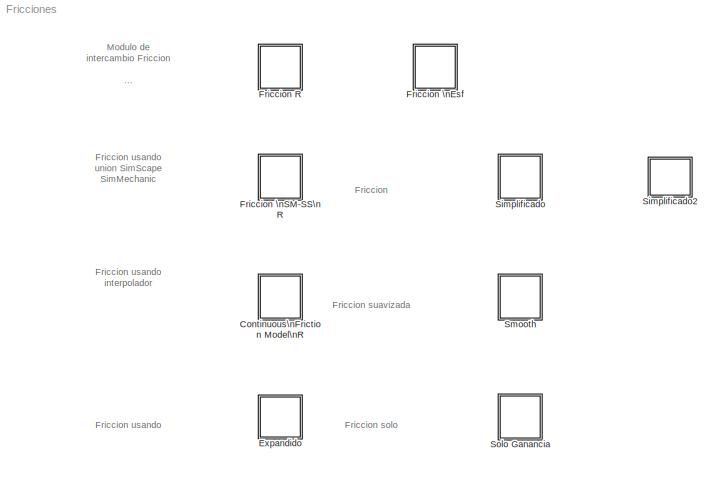
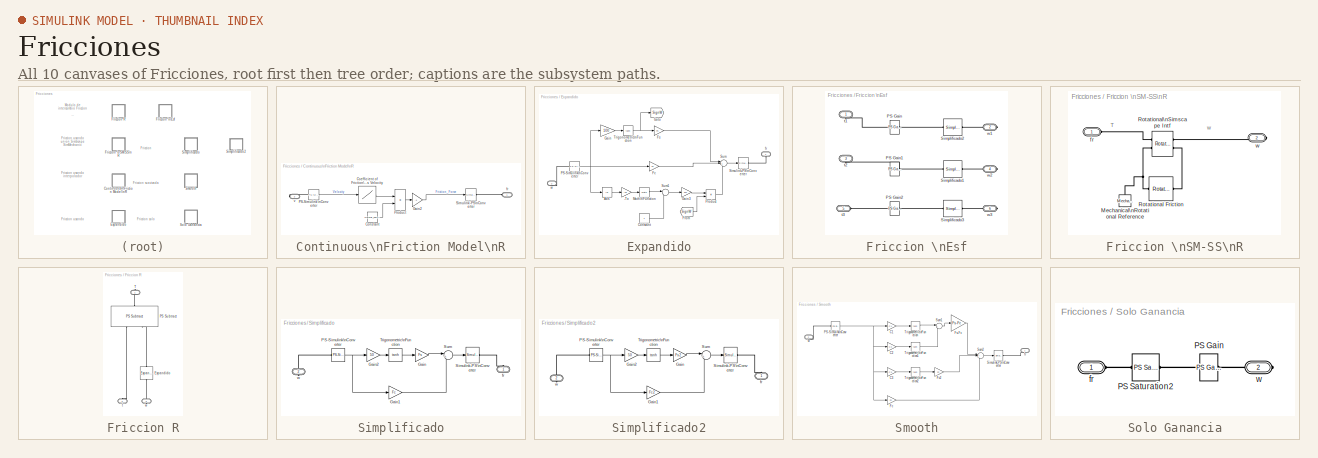
[diagram: thumbnail index - all 10 canvases of the model, root first then tree order]
MODEL Fricciones
KIND library
BLOCK [SubSystem] Continuous\nFriction Model\nR
  Ports = [0, 0, 0, 0, 0, 1, 1]
  RequestExecContextInheritance = off
  SID = 76
BLOCK [Lookup] Continuous\nFriction Model\nR/Coefficient of Friction\nvs Velocity
  InputValues = v_pts
  SID = 97
  SaturateOnIntegerOverflow = off
  Table = mu_pts
BLOCK [Constant] Continuous\nFriction Model\nR/Constant
  SID = 98
  Value = Normal_Force_Pist_Cyl
BLOCK [Gain] Continuous\nFriction Model\nR/Gain2
  Gain = -1
  Multiplication = Matrix(K*u)
  SID = 100
BLOCK [Reference] Continuous\nFriction Model\nR/PS-Simulink\nConverter  REF=nesl_utility/PS-Simulink\nConverter
  AffineConversion = off
  Frequencies = []
  LeftPortType = input
  PhysicalDomain = network_engine_domain
  Ports = [0, 1, 0, 0, 0, 1]
  PseudoPeriodic = off
  RightPortType = output
  SID = 102
  SourceBlock = nesl_utility/PS-Simulink\nConverter
  SourceType = PS-Simulink\nConverter
  SubClassName = ps_output
  Unit = 1
BLOCK [Product] Continuous\nFriction Model\nR/Product
  InputSameDT = off
  OutDataTypeStr = Inherit: Inherit via internal rule
  Ports = [2, 1]
  SID = 103
  SaturateOnIntegerOverflow = off
BLOCK [Reference] Continuous\nFriction Model\nR/Simulink-PS\nConverter  REF=nesl_utility/Simulink-PS\nConverter
  AffineConversion = off
  Frequencies = []
  InputFilterTimeConstant = 0.001
  InputFiltering = off
  LeftPortType = input
  NoiseDistribution = none
  NoiseParameters = []
  PhysicalDomain = network_engine_domain
  Ports = [1, 0, 0, 0, 0, 0, 1]
  PseudoPeriodic = off
  RightPortType = output
  SID = 104
  SimscapeFilterOrder = 1
  SourceBlock = nesl_utility/Simulink-PS\nConverter
  SourceType = Simulink-PS\nConverter
  SubClassName = ps_input
  UdotUserProvided = 1
  Unit = 1
BLOCK [PMIOPort] Continuous\nFriction Model\nR/fr
  Port = 1
  SID = 109
  Side = Left
BLOCK [PMIOPort] Continuous\nFriction Model\nR/v
  Port = 2
  SID = 110
  Side = Right
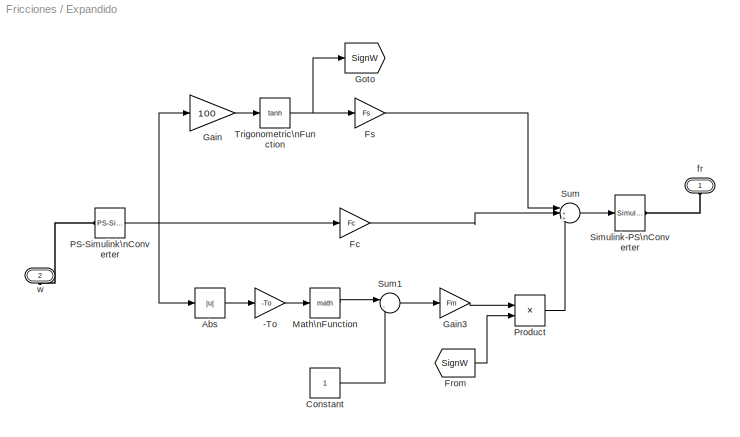
BLOCK [SubSystem] Expandido
  Ports = [0, 0, 0, 0, 0, 1, 1]
  RequestExecContextInheritance = off
  SID = 276
BLOCK [Gain] Expandido/-To
  Gain = -To
  OutDataTypeStr = Inherit: Inherit via internal rule
  ParamDataTypeStr = Inherit: Inherit via internal rule
  SID = 338
  SaturateOnIntegerOverflow = off
BLOCK [Abs] Expandido/Abs
  SID = 335
  SaturateOnIntegerOverflow = off
BLOCK [Constant] Expandido/Constant
  SID = 339
BLOCK [Gain] Expandido/Fc
  Gain = Fc
  OutDataTypeStr = Inherit: Inherit via internal rule
  ParamDataTypeStr = Inherit: Inherit via internal rule
  SID = 331
  SaturateOnIntegerOverflow = off
BLOCK [From] Expandido/From
  GotoTag = SignW
  SID = 390
BLOCK [Gain] Expandido/Fs
  Gain = Fs
  OutDataTypeStr = Inherit: Inherit via internal rule
  ParamDataTypeStr = Inherit: Inherit via internal rule
  SID = 332
  SaturateOnIntegerOverflow = off
BLOCK [Gain] Expandido/Gain
  Gain = 100
  OutDataTypeStr = Inherit: Inherit via internal rule
  ParamDataTypeStr = Inherit: Inherit via internal rule
  SID = 324
  SaturateOnIntegerOverflow = off
BLOCK [Gain] Expandido/Gain3
  Gain = Fm
  OutDataTypeStr = Inherit: Inherit via internal rule
  ParamDataTypeStr = Inherit: Inherit via internal rule
  SID = 337
  SaturateOnIntegerOverflow = off
BLOCK [Goto] Expandido/Goto
  GotoTag = SignW
  SID = 389
BLOCK [Math] Expandido/Math\nFunction
  Ports = [1, 1]
  SID = 336
BLOCK [Reference] Expandido/PS-Simulink\nConverter  REF=nesl_utility/PS-Simulink\nConverter
  AffineConversion = off
  Frequencies = []
  LeftPortType = input
  PhysicalDomain = network_engine_domain
  Ports = [0, 1, 0, 0, 0, 1]
  PseudoPeriodic = off
  RightPortType = output
  SID = 326
  SourceBlock = nesl_utility/PS-Simulink\nConverter
  SourceType = PS-Simulink\nConverter
  SubClassName = ps_output
  Unit = 1
BLOCK [Product] Expandido/Product
  InputSameDT = off
  OutDataTypeStr = Inherit: Inherit via internal rule
  Ports = [2, 1]
  RndMeth = Floor
  SID = 334
  SaturateOnIntegerOverflow = off
BLOCK [Reference] Expandido/Simulink-PS\nConverter  REF=nesl_utility/Simulink-PS\nConverter
  AffineConversion = off
  Frequencies = []
  InputFilterTimeConstant = 0.001
  InputFiltering = off
  LeftPortType = input
  NoiseDistribution = none
  NoiseParameters = []
  PhysicalDomain = network_engine_domain
  Ports = [1, 0, 0, 0, 0, 0, 1]
  PseudoPeriodic = off
  RightPortType = output
  SID = 342
  SimscapeFilterOrder = 1
  SourceBlock = nesl_utility/Simulink-PS\nConverter
  SourceType = Simulink-PS\nConverter
  SubClassName = ps_input
  UdotUserProvided = 1
  Unit = 1
BLOCK [Sum] Expandido/Sum
  IconShape = round
  InputSameDT = off
  Inputs = |++-
  OutDataTypeStr = Inherit: Inherit via internal rule
  Ports = [3, 1]
  SID = 333
  SaturateOnIntegerOverflow = off
BLOCK [Sum] Expandido/Sum1
  IconShape = round
  InputSameDT = off
  Inputs = |-+
  OutDataTypeStr = Inherit: Inherit via internal rule
  Ports = [2, 1]
  SID = 340
  SaturateOnIntegerOverflow = off
BLOCK [Trigonometry] Expandido/Trigonometric\nFunction
  Operator = tanh
  Ports = [1, 1]
  SID = 323
BLOCK [PMIOPort] Expandido/fr
  Port = 1
  SID = 297
  Side = Left
BLOCK [PMIOPort] Expandido/w
  Port = 2
  SID = 298
  Side = Right
BLOCK [SubSystem] Friccion R
  Ports = [0, 0, 0, 0, 0, 1, 2]
  RequestExecContextInheritance = off
  SID = 4
BLOCK [Reference] Friccion R/Expandido  REF=Fricciones/Expandido
  FunctionWithSeparateData = off
  GeneratePreprocessorConditionals = off
  Ports = [0, 0, 0, 0, 0, 1, 1]
  SID = 416
  ShowPortLabels = FromPortIcon
  SourceBlock = Fricciones/Expandido
  SystemSampleTime = -1
BLOCK [Reference] Friccion R/PS Subtract  REF=fl_lib/Physical Signals/Functions/PS Subtract
  ClassName = subtract
  ComponentPath = foundation.physical_signal.functions.subtract
  ComponentVariantNames = subtract
  ComponentVariants = foundation.physical_signal.functions.subtract
  Ports = [0, 0, 0, 0, 0, 2, 1]
  SID = 3
  SchemaVersion = 1
  SourceBlock = fl_lib/Physical Signals/Functions/PS Subtract
  SourceFile = foundation.physical_signal.functions.subtract
  SourceType = PS Subtract
BLOCK [PMIOPort] Friccion R/T
  Port = 1
  SID = 5
  Side = Right
BLOCK [PMIOPort] Friccion R/t
  Port = 2
  SID = 7
  Side = Left
BLOCK [PMIOPort] Friccion R/w
  Port = 3
  SID = 6
  Side = Right
BLOCK [SubSystem] Friccion \nEsf
  Ports = [0, 0, 0, 0, 0, 3, 3]
  RequestExecContextInheritance = off
  SID = 11
BLOCK [Reference] Friccion \nEsf/PS Gain  REF=fl_lib/Physical Signals/Functions/PS Gain
  ClassName = gain
  ComponentPath = foundation.physical_signal.functions.gain
  ComponentVariantNames = gain
  ComponentVariants = foundation.physical_signal.functions.gain
  Ports = [0, 0, 0, 0, 0, 1, 1]
  SID = 356
  SchemaVersion = 1
  SourceBlock = fl_lib/Physical Signals/Functions/PS Gain
  SourceFile = foundation.physical_signal.functions.gain
  SourceType = PS Gain
  gain = -1
  gain_unit = 1
BLOCK [Reference] Friccion \nEsf/PS Gain1  REF=fl_lib/Physical Signals/Functions/PS Gain
  ClassName = gain
  ComponentPath = foundation.physical_signal.functions.gain
  ComponentVariantNames = gain
  ComponentVariants = foundation.physical_signal.functions.gain
  Ports = [0, 0, 0, 0, 0, 1, 1]
  SID = 357
  SchemaVersion = 1
  SourceBlock = fl_lib/Physical Signals/Functions/PS Gain
  SourceFile = foundation.physical_signal.functions.gain
  SourceType = PS Gain
  gain = -1
  gain_unit = 1
BLOCK [Reference] Friccion \nEsf/PS Gain2  REF=fl_lib/Physical Signals/Functions/PS Gain
  ClassName = gain
  ComponentPath = foundation.physical_signal.functions.gain
  ComponentVariantNames = gain
  ComponentVariants = foundation.physical_signal.functions.gain
  Ports = [0, 0, 0, 0, 0, 1, 1]
  SID = 358
  SchemaVersion = 1
  SourceBlock = fl_lib/Physical Signals/Functions/PS Gain
  SourceFile = foundation.physical_signal.functions.gain
  SourceType = PS Gain
  gain = -1
  gain_unit = 1
BLOCK [Reference] Friccion \nEsf/Simplificado1  REF=Fricciones/Simplificado2
  Ports = [0, 0, 0, 0, 0, 1, 1]
  SID = 410
  SourceBlock = Fricciones/Simplificado2
  SourceType = SubSystem
BLOCK [Reference] Friccion \nEsf/Simplificado2  REF=Fricciones/Simplificado2
  Ports = [0, 0, 0, 0, 0, 1, 1]
  SID = 409
  SourceBlock = Fricciones/Simplificado2
  SourceType = SubSystem
BLOCK [Reference] Friccion \nEsf/Simplificado3  REF=Fricciones/Simplificado2
  Ports = [0, 0, 0, 0, 0, 1, 1]
  SID = 411
  SourceBlock = Fricciones/Simplificado2
  SourceType = SubSystem
BLOCK [PMIOPort] Friccion \nEsf/t1
  Port = 1
  SID = 12
  Side = Left
BLOCK [PMIOPort] Friccion \nEsf/t2
  Port = 3
  SID = 14
  Side = Left
BLOCK [PMIOPort] Friccion \nEsf/t3
  Port = 5
  SID = 16
  Side = Left
BLOCK [PMIOPort] Friccion \nEsf/w1
  Port = 2
  SID = 387
  Side = Right
BLOCK [PMIOPort] Friccion \nEsf/w2
  Port = 4
  SID = 15
  Side = Right
BLOCK [PMIOPort] Friccion \nEsf/w3
  Port = 6
  SID = 17
  Side = Right
BLOCK [SubSystem] Friccion \nSM-SS\nR
  Ports = [0, 0, 0, 0, 0, 1, 1]
  RequestExecContextInheritance = off
  SID = 60
BLOCK [Reference] Friccion \nSM-SS\nR/Mechanical\nRotational Reference  REF=fl_lib/Mechanical/Rotational Elements/Mechanical\nRotational Reference
  ClassName = reference_rot
  ComponentPath = foundation.mechanical.rotational.reference
  ComponentVariantNames = reference
  ComponentVariants = foundation.mechanical.rotational.reference
  Ports = [0, 0, 0, 0, 0, 1]
  SID = 52
  SchemaVersion = 1
  SourceBlock = fl_lib/Mechanical/Rotational Elements/Mechanical\nRotational Reference
  SourceFile = foundation.mechanical.rotational.reference
  SourceType = Mechanical\nRotational Reference
BLOCK [Reference] Friccion \nSM-SS\nR/Rotational Friction  REF=fl_lib/Mechanical/Rotational Elements/Rotational Friction
  ClassName = friction
  Col_trq = CFT
  Col_trq_unit = N*m
  ComponentPath = foundation.mechanical.rotational.friction
  ComponentVariantNames = friction
  ComponentVariants = foundation.mechanical.rotational.friction
  Ports = [0, 0, 0, 0, 0, 1, 1]
  SID = 55
  SchemaVersion = 1
  SourceBlock = fl_lib/Mechanical/Rotational Elements/Rotational Friction
  SourceFile = foundation.mechanical.rotational.friction
  SourceType = Rotational Friction
  brkwy_trq = BFT
  brkwy_trq_unit = N*m
  t = 0
  t_priority = High
  t_specify = on
  t_unit = N*m
  trans_coef = Tac
  trans_coef_unit = s/rad
  vel_thr = 1e-4
  vel_thr_unit = rad/s
  visc_coef = VFc
  visc_coef_unit = N*m/(rad/s)
  w = 0
  w_priority = High
  w_specify = on
  w_unit = rad/s
BLOCK [Reference] Friccion \nSM-SS\nR/Rotational\nSimscape Intf  REF=MS2G_SS_Intf_Lib/Rotational\nSimscape Intf
  Ports = [0, 0, 0, 0, 0, 2, 2]
  SID = 54
  SourceBlock = MS2G_SS_Intf_Lib/Rotational\nSimscape Intf
  SourceType = SubSystem
BLOCK [PMIOPort] Friccion \nSM-SS\nR/fr
  Port = 1
  SID = 62
  Side = Left
BLOCK [PMIOPort] Friccion \nSM-SS\nR/w
  Port = 2
  SID = 63
  Side = Right
BLOCK [SubSystem] Simplificado
  Ports = [0, 0, 0, 0, 0, 1, 1]
  RequestExecContextInheritance = off
  SID = 260
BLOCK [Gain] Simplificado/Gain
  Gain = Fs
  OutDataTypeStr = Inherit: Inherit via internal rule
  ParamDataTypeStr = Inherit: Inherit via internal rule
  SID = 318
  SaturateOnIntegerOverflow = off
BLOCK [Gain] Simplificado/Gain1
  Gain = Fc
  OutDataTypeStr = Inherit: Inherit via internal rule
  ParamDataTypeStr = Inherit: Inherit via internal rule
  SID = 319
  SaturateOnIntegerOverflow = off
BLOCK [Gain] Simplificado/Gain2
  Gain = 50
  OutDataTypeStr = Inherit: Inherit via internal rule
  ParamDataTypeStr = Inherit: Inherit via internal rule
  SID = 321
  SaturateOnIntegerOverflow = off
BLOCK [Reference] Simplificado/PS-Simulink\nConverter  REF=nesl_utility/PS-Simulink\nConverter
  AffineConversion = off
  Frequencies = []
  LeftPortType = input
  PhysicalDomain = network_engine_domain
  Ports = [0, 1, 0, 0, 0, 1]
  PseudoPeriodic = off
  RightPortType = output
  SID = 316
  SourceBlock = nesl_utility/PS-Simulink\nConverter
  SourceType = PS-Simulink\nConverter
  SubClassName = ps_output
  Unit = 1
BLOCK [Reference] Simplificado/Simulink-PS\nConverter  REF=nesl_utility/Simulink-PS\nConverter
  AffineConversion = off
  Frequencies = []
  InputFilterTimeConstant = 0.001
  InputFiltering = off
  LeftPortType = input
  NoiseDistribution = none
  NoiseParameters = []
  PhysicalDomain = network_engine_domain
  Ports = [1, 0, 0, 0, 0, 0, 1]
  PseudoPeriodic = off
  RightPortType = output
  SID = 315
  SimscapeFilterOrder = 1
  SourceBlock = nesl_utility/Simulink-PS\nConverter
  SourceType = Simulink-PS\nConverter
  SubClassName = ps_input
  UdotUserProvided = 1
  Unit = 1
BLOCK [Sum] Simplificado/Sum
  IconShape = round
  InputSameDT = off
  Inputs = |++
  OutDataTypeStr = Inherit: Inherit via internal rule
  Ports = [2, 1]
  SID = 320
  SaturateOnIntegerOverflow = off
BLOCK [Trigonometry] Simplificado/Trigonometric\nFunction
  Operator = tanh
  Ports = [1, 1]
  SID = 322
BLOCK [PMIOPort] Simplificado/fr
  Port = 1
  SID = 287
  Side = Left
BLOCK [PMIOPort] Simplificado/w
  Port = 2
  SID = 288
  Side = Right
BLOCK [SubSystem] Simplificado2
  Ports = [0, 0, 0, 0, 0, 1, 1]
  RequestExecContextInheritance = off
  SID = 406
BLOCK [Gain] Simplificado2/Gain
  Gain = Fs2
  OutDataTypeStr = Inherit: Inherit via internal rule
  ParamDataTypeStr = Inherit: Inherit via internal rule
  SID = 397
  SaturateOnIntegerOverflow = off
BLOCK [Gain] Simplificado2/Gain1
  Gain = Fc2
  OutDataTypeStr = Inherit: Inherit via internal rule
  ParamDataTypeStr = Inherit: Inherit via internal rule
  SID = 398
  SaturateOnIntegerOverflow = off
BLOCK [Gain] Simplificado2/Gain2
  Gain = 50
  OutDataTypeStr = Inherit: Inherit via internal rule
  ParamDataTypeStr = Inherit: Inherit via internal rule
  SID = 399
  SaturateOnIntegerOverflow = off
BLOCK [Reference] Simplificado2/PS-Simulink\nConverter  REF=nesl_utility/PS-Simulink\nConverter
  AffineConversion = off
  Frequencies = []
  LeftPortType = input
  PhysicalDomain = network_engine_domain
  Ports = [0, 1, 0, 0, 0, 1]
  PseudoPeriodic = off
  RightPortType = output
  SID = 400
  SourceBlock = nesl_utility/PS-Simulink\nConverter
  SourceType = PS-Simulink\nConverter
  SubClassName = ps_output
  Unit = 1
BLOCK [Reference] Simplificado2/Simulink-PS\nConverter  REF=nesl_utility/Simulink-PS\nConverter
  AffineConversion = off
  Frequencies = []
  InputFilterTimeConstant = 0.001
  InputFiltering = off
  LeftPortType = input
  NoiseDistribution = none
  NoiseParameters = []
  PhysicalDomain = network_engine_domain
  Ports = [1, 0, 0, 0, 0, 0, 1]
  PseudoPeriodic = off
  RightPortType = output
  SID = 401
  SimscapeFilterOrder = 1
  SourceBlock = nesl_utility/Simulink-PS\nConverter
  SourceType = Simulink-PS\nConverter
  SubClassName = ps_input
  UdotUserProvided = 1
  Unit = 1
BLOCK [Sum] Simplificado2/Sum
  IconShape = round
  InputSameDT = off
  Inputs = |++
  OutDataTypeStr = Inherit: Inherit via internal rule
  Ports = [2, 1]
  SID = 402
  SaturateOnIntegerOverflow = off
BLOCK [Trigonometry] Simplificado2/Trigonometric\nFunction
  Operator = tanh
  Ports = [1, 1]
  SID = 403
BLOCK [PMIOPort] Simplificado2/fr
  Port = 1
  SID = 407
  Side = Left
BLOCK [PMIOPort] Simplificado2/w
  Port = 2
  SID = 408
  Side = Right
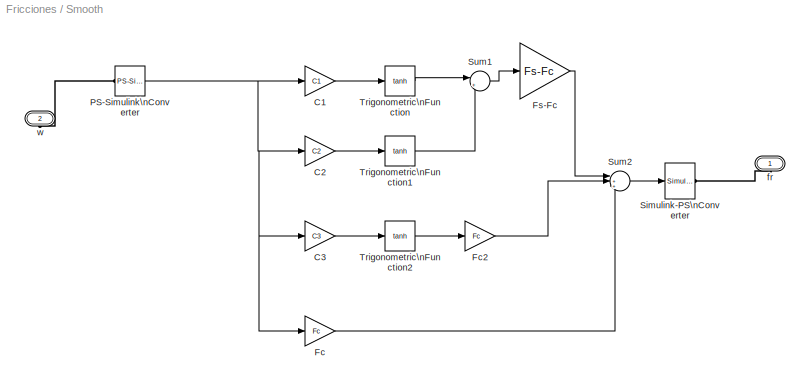
BLOCK [SubSystem] Smooth
  Ports = [0, 0, 0, 0, 0, 1, 1]
  RequestExecContextInheritance = off
  SID = 253
BLOCK [Gain] Smooth/C1
  Gain = C1
  OutDataTypeStr = Inherit: Inherit via internal rule
  ParamDataTypeStr = Inherit: Inherit via internal rule
  SID = 242
  SaturateOnIntegerOverflow = off
BLOCK [Gain] Smooth/C2
  Gain = C2
  OutDataTypeStr = Inherit: Inherit via internal rule
  ParamDataTypeStr = Inherit: Inherit via internal rule
  SID = 243
  SaturateOnIntegerOverflow = off
BLOCK [Gain] Smooth/C3
  Gain = C3
  OutDataTypeStr = Inherit: Inherit via internal rule
  ParamDataTypeStr = Inherit: Inherit via internal rule
  SID = 244
  SaturateOnIntegerOverflow = off
BLOCK [Gain] Smooth/Fc
  Gain = Fc
  OutDataTypeStr = Inherit: Inherit via internal rule
  ParamDataTypeStr = Inherit: Inherit via internal rule
  SID = 245
  SaturateOnIntegerOverflow = off
BLOCK [Gain] Smooth/Fc2
  Gain = Fc
  OutDataTypeStr = Inherit: Inherit via internal rule
  ParamDataTypeStr = Inherit: Inherit via internal rule
  SID = 246
  SaturateOnIntegerOverflow = off
BLOCK [Gain] Smooth/Fs-Fc
  Gain = Fs-Fc
  OutDataTypeStr = Inherit: Inherit via internal rule
  ParamDataTypeStr = Inherit: Inherit via internal rule
  SID = 247
  SaturateOnIntegerOverflow = off
BLOCK [Reference] Smooth/PS-Simulink\nConverter  REF=nesl_utility/PS-Simulink\nConverter
  AffineConversion = off
  Frequencies = []
  LeftPortType = input
  PhysicalDomain = network_engine_domain
  Ports = [0, 1, 0, 0, 0, 1]
  PseudoPeriodic = off
  RightPortType = output
  SID = 281
  SourceBlock = nesl_utility/PS-Simulink\nConverter
  SourceType = PS-Simulink\nConverter
  SubClassName = ps_output
  Unit = 1
BLOCK [Reference] Smooth/Simulink-PS\nConverter  REF=nesl_utility/Simulink-PS\nConverter
  AffineConversion = off
  Frequencies = []
  InputFilterTimeConstant = 0.001
  InputFiltering = off
  LeftPortType = input
  NoiseDistribution = none
  NoiseParameters = []
  PhysicalDomain = network_engine_domain
  Ports = [1, 0, 0, 0, 0, 0, 1]
  PseudoPeriodic = off
  RightPortType = output
  SID = 282
  SimscapeFilterOrder = 1
  SourceBlock = nesl_utility/Simulink-PS\nConverter
  SourceType = Simulink-PS\nConverter
  SubClassName = ps_input
  UdotUserProvided = 1
  Unit = 1
BLOCK [Sum] Smooth/Sum1
  IconShape = round
  InputSameDT = off
  Inputs = |+-
  OutDataTypeStr = Inherit: Inherit via internal rule
  Ports = [2, 1]
  SID = 248
  SaturateOnIntegerOverflow = off
BLOCK [Sum] Smooth/Sum2
  IconShape = round
  InputSameDT = off
  Inputs = |+++
  OutDataTypeStr = Inherit: Inherit via internal rule
  Ports = [3, 1]
  SID = 249
  SaturateOnIntegerOverflow = off
BLOCK [Trigonometry] Smooth/Trigonometric\nFunction
  Operator = tanh
  Ports = [1, 1]
  SID = 250
BLOCK [Trigonometry] Smooth/Trigonometric\nFunction1
  Operator = tanh
  Ports = [1, 1]
  SID = 251
BLOCK [Trigonometry] Smooth/Trigonometric\nFunction2
  Operator = tanh
  Ports = [1, 1]
  SID = 252
BLOCK [PMIOPort] Smooth/fr
  Port = 1
  SID = 283
  Side = Left
BLOCK [PMIOPort] Smooth/w
  Port = 2
  SID = 284
  Side = Right
BLOCK [SubSystem] Solo Ganancia
  Ports = [0, 0, 0, 0, 0, 1, 1]
  RequestExecContextInheritance = off
  SID = 229
BLOCK [Reference] Solo Ganancia/PS Gain  REF=fl_lib/Physical Signals/Functions/PS Gain
  ClassName = gain
  ComponentPath = foundation.physical_signal.functions.gain
  ComponentVariantNames = gain
  ComponentVariants = foundation.physical_signal.functions.gain
  Ports = [0, 0, 0, 0, 0, 1, 1]
  SID = 205
  SchemaVersion = 1
  SourceBlock = fl_lib/Physical Signals/Functions/PS Gain
  SourceFile = foundation.physical_signal.functions.gain
  SourceType = PS Gain
  gain = -Friccion
  gain_unit = 1
BLOCK [Reference] Solo Ganancia/PS Saturation2  REF=fl_lib/Physical Signals/Nonlinear Operators/PS Saturation
  ClassName = saturation
  ComponentPath = foundation.physical_signal.nonlinear.saturation
  ComponentVariantNames = saturation
  ComponentVariants = foundation.physical_signal.nonlinear.saturation
  Ports = [0, 0, 0, 0, 0, 1, 1]
  SID = 213
  SchemaVersion = 1
  SourceBlock = fl_lib/Physical Signals/Nonlinear Operators/PS Saturation
  SourceFile = foundation.physical_signal.nonlinear.saturation
  SourceType = PS Saturation
  lower_limit = - 0.1
  lower_limit_unit = 1
  upper_limit = 0.1
  upper_limit_unit = 1
BLOCK [PMIOPort] Solo Ganancia/fr
  Port = 1
  SID = 230
  Side = Left
BLOCK [PMIOPort] Solo Ganancia/w
  Port = 2
  SID = 231
  Side = Right
ANNOTATION (root): \n \n \n Friccion \n simplificada \n \n \n Fr(w)=Fs*sgn(w) + Fc*w \n \n \n
ANNOTATION (root): \n \n \n Friccion solo \n Ganancia \n \n \n Fr(w) = Fc*w
ANNOTATION (root): \n \n \n Friccion suavizada \n \n \n Fr(w)=(Fs-Fc)[tanh(c1*w) \n -tanh(c2*w)]+Fc tanh(c3*w) \n +Fc*w \n \n \n
ANNOTATION (root): \n \n \n Friccion usando \n el modelo \n Expandido \n \n Fr(w)=Fs sgn(w)+Fc*w - \n Fm(1-e^-(T0|w|))*sgn(w)
ANNOTATION (root): \nFriccion usando \ninterpolador\n \n\n
ANNOTATION (root): \nFriccion usando \nunion SimScape\nSimMechanic\n \n\n
ANNOTATION (root): \n\nModulo de \nintercambio Friccion\n \n \n
ANNOTATION Friccion \nSM-SS\nR: T
ANNOTATION Friccion \nSM-SS\nR: w
LINE Continuous\nFriction Model\nR/Coefficient of Friction\nvs Velocity:1 -> Continuous\nFriction Model\nR/Product:1
LINE Continuous\nFriction Model\nR/Constant:1 -> Continuous\nFriction Model\nR/Product:2
LINE Continuous\nFriction Model\nR/Gain2:1 -> Continuous\nFriction Model\nR/Simulink-PS\nConverter:1
LINE Continuous\nFriction Model\nR/PS-Simulink\nConverter:1 -> Continuous\nFriction Model\nR/Coefficient of Friction\nvs Velocity:1
LINE Continuous\nFriction Model\nR/Product:1 -> Continuous\nFriction Model\nR/Gain2:1
LINE Expandido/-To:1 -> Expandido/Math\nFunction:1
LINE Expandido/Abs:1 -> Expandido/-To:1
LINE Expandido/Constant:1 -> Expandido/Sum1:2
LINE Expandido/Fc:1 -> Expandido/Sum:2
LINE Expandido/From:1 -> Expandido/Product:2
LINE Expandido/Fs:1 -> Expandido/Sum:1
LINE Expandido/Gain3:1 -> Expandido/Product:1
LINE Expandido/Gain:1 -> Expandido/Trigonometric\nFunction:1
LINE Expandido/Math\nFunction:1 -> Expandido/Sum1:1
NET Expandido/PS-Simulink\nConverter:1 -> Expandido/Abs:1, Expandido/Fc:1, Expandido/Gain:1
LINE Expandido/Product:1 -> Expandido/Sum:3
LINE Expandido/Sum1:1 -> Expandido/Gain3:1
LINE Expandido/Sum:1 -> Expandido/Simulink-PS\nConverter:1
NET Expandido/Trigonometric\nFunction:1 -> Expandido/Fs:1, Expandido/Goto:1
LINE Simplificado/Gain1:1 -> Simplificado/Sum:2
LINE Simplificado/Gain2:1 -> Simplificado/Trigonometric\nFunction:1
LINE Simplificado/Gain:1 -> Simplificado/Sum:1
NET Simplificado/PS-Simulink\nConverter:1 -> Simplificado/Gain1:1, Simplificado/Gain2:1
LINE Simplificado/Sum:1 -> Simplificado/Simulink-PS\nConverter:1
LINE Simplificado/Trigonometric\nFunction:1 -> Simplificado/Gain:1
LINE Simplificado2/Gain1:1 -> Simplificado2/Sum:2
LINE Simplificado2/Gain2:1 -> Simplificado2/Trigonometric\nFunction:1
LINE Simplificado2/Gain:1 -> Simplificado2/Sum:1
NET Simplificado2/PS-Simulink\nConverter:1 -> Simplificado2/Gain1:1, Simplificado2/Gain2:1
LINE Simplificado2/Sum:1 -> Simplificado2/Simulink-PS\nConverter:1
LINE Simplificado2/Trigonometric\nFunction:1 -> Simplificado2/Gain:1
LINE Smooth/C1:1 -> Smooth/Trigonometric\nFunction:1
LINE Smooth/C2:1 -> Smooth/Trigonometric\nFunction1:1
LINE Smooth/C3:1 -> Smooth/Trigonometric\nFunction2:1
LINE Smooth/Fc2:1 -> Smooth/Sum2:2
LINE Smooth/Fc:1 -> Smooth/Sum2:3
LINE Smooth/Fs-Fc:1 -> Smooth/Sum2:1
NET Smooth/PS-Simulink\nConverter:1 -> Smooth/C1:1, Smooth/C2:1, Smooth/C3:1, Smooth/Fc:1
LINE Smooth/Sum1:1 -> Smooth/Fs-Fc:1
LINE Smooth/Sum2:1 -> Smooth/Simulink-PS\nConverter:1
LINE Smooth/Trigonometric\nFunction1:1 -> Smooth/Sum1:2
LINE Smooth/Trigonometric\nFunction2:1 -> Smooth/Fc2:1
LINE Smooth/Trigonometric\nFunction:1 -> Smooth/Sum1:1
PLINE Continuous\nFriction Model\nR/PS-Simulink\nConverter:LConn1 -- Continuous\nFriction Model\nR/v:RConn1
PLINE Continuous\nFriction Model\nR/Simulink-PS\nConverter:RConn1 -- Continuous\nFriction Model\nR/fr:RConn1
PLINE Expandido/PS-Simulink\nConverter:LConn1 -- Expandido/w:RConn1
PLINE Expandido/Simulink-PS\nConverter:RConn1 -- Expandido/fr:RConn1
PLINE Friccion R/Expandido:LConn1 -- Friccion R/PS Subtract:LConn2
PLINE Friccion R/Expandido:RConn1 -- Friccion R/w:RConn1
PLINE Friccion R/PS Subtract:LConn1 -- Friccion R/t:RConn1
PLINE Friccion R/PS Subtract:RConn1 -- Friccion R/T:RConn1
PLINE Friccion \nEsf/PS Gain1:LConn1 -- Friccion \nEsf/Simplificado1:LConn1
PLINE Friccion \nEsf/PS Gain1:RConn1 -- Friccion \nEsf/t2:RConn1
PLINE Friccion \nEsf/PS Gain2:LConn1 -- Friccion \nEsf/Simplificado3:LConn1
PLINE Friccion \nEsf/PS Gain2:RConn1 -- Friccion \nEsf/t3:RConn1
PLINE Friccion \nEsf/PS Gain:LConn1 -- Friccion \nEsf/Simplificado2:LConn1
PLINE Friccion \nEsf/PS Gain:RConn1 -- Friccion \nEsf/t1:RConn1
PLINE Friccion \nEsf/Simplificado1:RConn1 -- Friccion \nEsf/w2:RConn1
PLINE Friccion \nEsf/Simplificado2:RConn1 -- Friccion \nEsf/w1:RConn1
PLINE Friccion \nEsf/Simplificado3:RConn1 -- Friccion \nEsf/w3:RConn1
PNET net1: Friccion \nSM-SS\nR/Mechanical\nRotational Reference:LConn1 -- Friccion \nSM-SS\nR/Rotational Friction:RConn1 -- Friccion \nSM-SS\nR/Rotational\nSimscape Intf:RConn2
PLINE Friccion \nSM-SS\nR/Rotational Friction:LConn1 -- Friccion \nSM-SS\nR/Rotational\nSimscape Intf:LConn2
PLINE Friccion \nSM-SS\nR/Rotational\nSimscape Intf:LConn1 -- Friccion \nSM-SS\nR/w:RConn1
PLINE Friccion \nSM-SS\nR/Rotational\nSimscape Intf:RConn1 -- Friccion \nSM-SS\nR/fr:RConn1
PLINE Simplificado/PS-Simulink\nConverter:LConn1 -- Simplificado/w:RConn1
PLINE Simplificado/Simulink-PS\nConverter:RConn1 -- Simplificado/fr:RConn1
PLINE Simplificado2/PS-Simulink\nConverter:LConn1 -- Simplificado2/w:RConn1
PLINE Simplificado2/Simulink-PS\nConverter:RConn1 -- Simplificado2/fr:RConn1
PLINE Smooth/PS-Simulink\nConverter:LConn1 -- Smooth/w:RConn1
PLINE Smooth/Simulink-PS\nConverter:RConn1 -- Smooth/fr:RConn1
PLINE Solo Ganancia/PS Gain:LConn1 -- Solo Ganancia/w:RConn1
PLINE Solo Ganancia/PS Gain:RConn1 -- Solo Ganancia/PS Saturation2:LConn1
PLINE Solo Ganancia/PS Saturation2:RConn1 -- Solo Ganancia/fr:RConn1
note: NET lines group one-source signal fan-out (src -> all destinations, sorted); 1:1 wires keep LINE; PNET lines group multi-terminal physical nets as a canonical sorted terminal list (undirected conserving connections); 2-terminal nets keep the pairwise PLINE form
